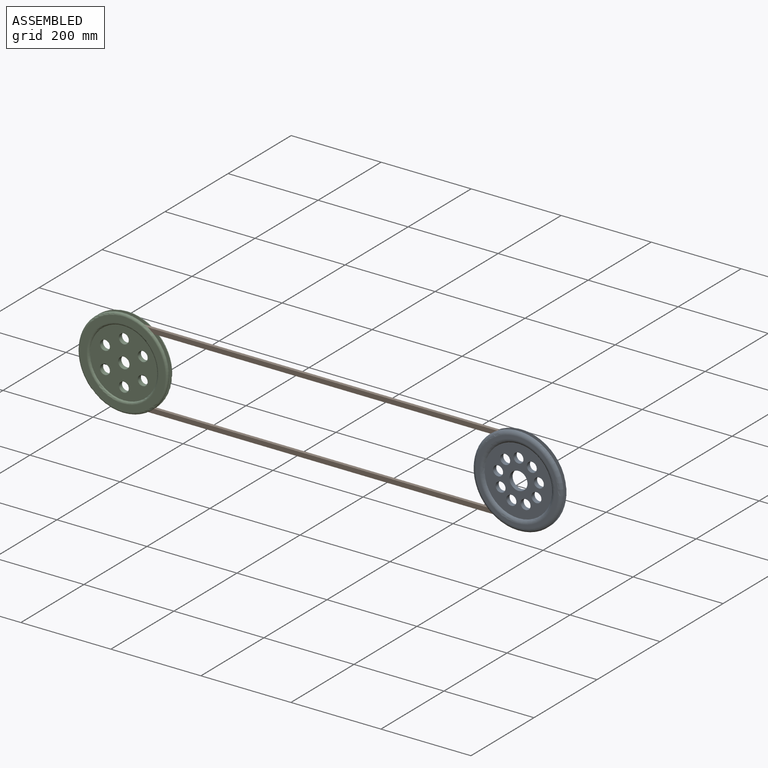
[diagram: assembled view]
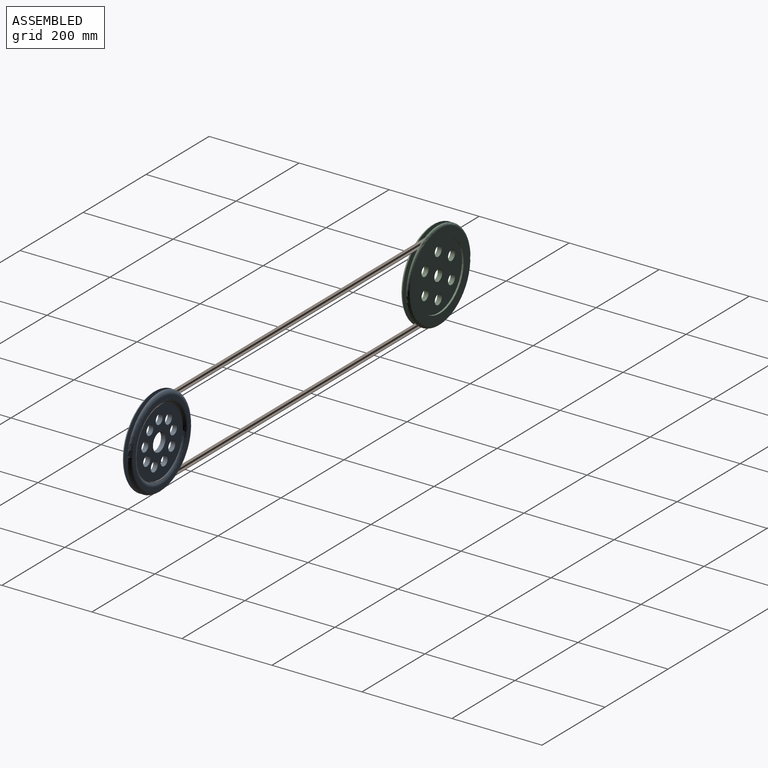
[diagram: assembled view, second angle]
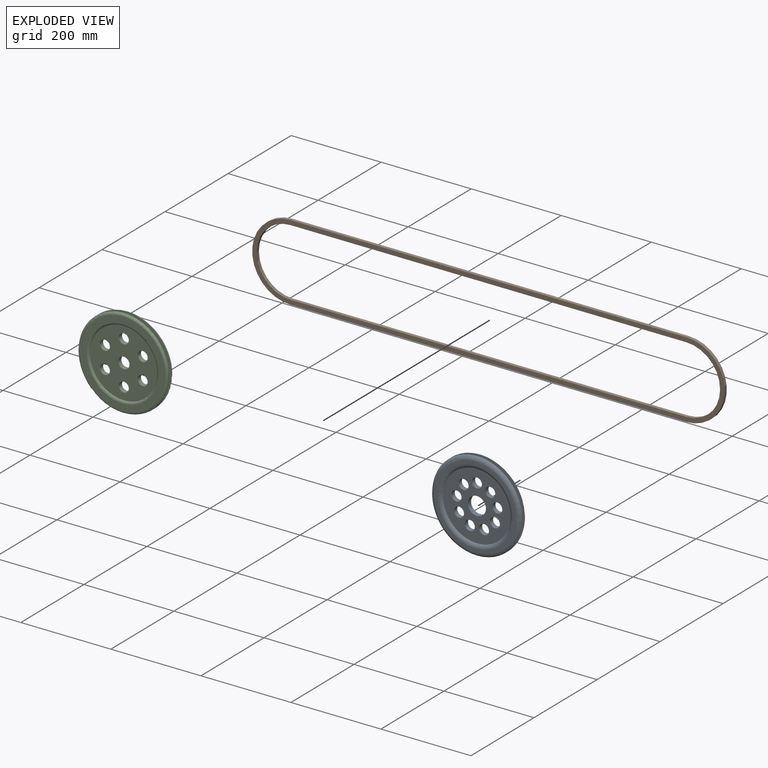
[diagram: exploded view]
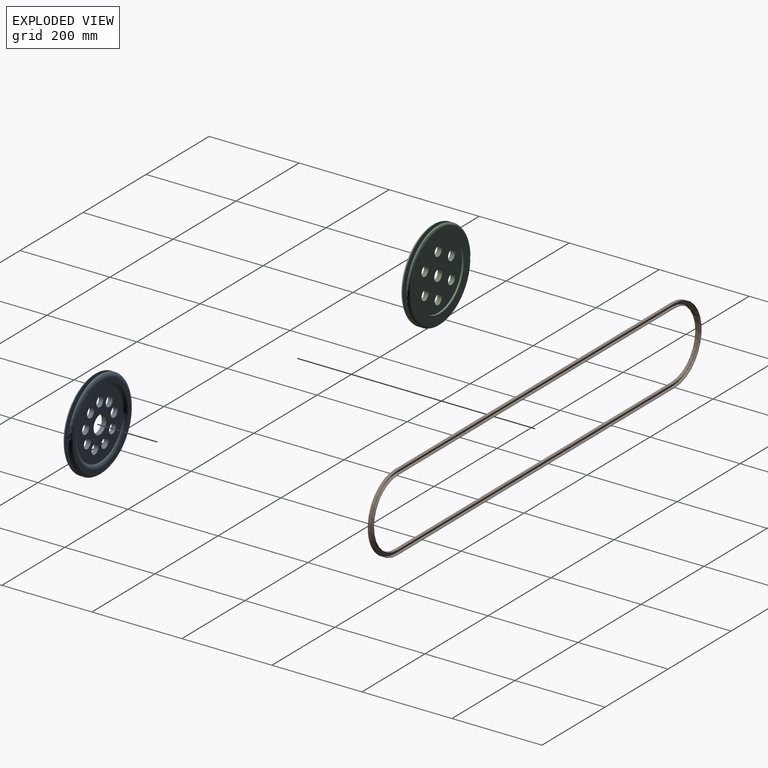
[diagram: exploded view, second angle]
ASSEMBLY  parts=3 mates=2
PART A: 21 faces, bbox 218.3x20x218.3 mm
  f0: cylinder r=75mm len=150mm, axis (0,1,0), area 3769.9mm2, adj f14,f16
  f1: cylinder r=11mm len=22mm, axis (0,1,0), area 691.2mm2, adj f11,f12
  f2: cylinder r=11mm len=22mm, axis (0,1,0), area 691.2mm2, adj f11,f12
  f3: cylinder r=11mm len=22mm, axis (0,1,0), area 691.2mm2, adj f11,f12
  f4: cylinder r=11mm len=22mm, axis (0,1,0), area 691.2mm2, adj f11,f12
  f5: cylinder r=11mm len=22mm, axis (0,1,0), area 691.2mm2, adj f11,f12
  f6: cylinder r=11mm len=22mm, axis (0,1,0), area 691.2mm2, adj f11,f12
  f7: cylinder r=11mm len=22mm, axis (0,1,0), area 691.2mm2, adj f11,f12
  f8: cylinder r=11mm len=22mm, axis (0,1,0), area 691.2mm2, adj f11,f12
  f9: cylinder r=11mm len=22mm, axis (0,1,0), area 691.2mm2, adj f11,f12
  f10: cylinder r=20mm len=40mm, axis (0,1,0), area 1256.6mm2, adj f11,f12
  f11: plane 150x150mm, normal (0,-1,0), area 12993.6mm2, adj f1,f2,f3,f4,f5,f6,f7,f8
  f12: plane 150x150mm, normal (0,1,0), area 12993.6mm2, adj f1,f2,f3,f4,f5,f6,f7,f8
  f13: plane 181.67x181.67mm, normal (0,-1,0), area 3933.1mm2, adj f19,f20
  f14: plane 200x200mm, normal (0,1,0), area 13744.5mm2, adj f0,f20
  f15: plane 181.67x181.67mm, normal (0,1,0), area 3933.1mm2, adj f17,f18
  f16: plane 200x200mm, normal (0,-1,0), area 13744.5mm2, adj f0,f18
  f17: torus R=83.66mm, axis (0,1,0), area 5190.5mm2, adj f12,f15
  f18: torus R=90.83mm, axis (0,-1,0), area 6993.4mm2, adj f15,f16
  f19: torus R=83.66mm, axis (0,-1,0), area 5190.5mm2, adj f11,f13
  f20: torus R=90.83mm, axis (0,1,0), area 6993.4mm2, adj f13,f14
PART B: 20 faces, bbox 1049.6x7x170 mm
  f0: plane 1049.64x170mm, normal (0,1,0), area 2290.2mm2, adj f5,f6,f7,f8,f14,f15,f16,f17
  f1: plane 1031.64x152mm, normal (0,1,0), area 2233.7mm2, adj f2,f3,f4,f9,f11,f12,f13,f18
  f2: cylinder r=75mm len=150mm, axis (0,1,0), area 1649.3mm2, adj f1,f3,f9,f10
  f3: plane 879.64x7mm, normal (0,0,-1), area 6157.5mm2, adj f1,f2,f4,f10
  f4: cylinder r=75mm len=150mm, axis (0,1,0), area 1649.3mm2, adj f1,f3,f9,f10
  f5: plane 879.64x7mm, normal (0,0,1), area 6157.5mm2, adj f0,f6,f8,f10
  f6: cylinder r=85mm len=170mm, axis (0,1,0), area 1869.2mm2, adj f0,f5,f7,f10
  f7: plane 879.64x7mm, normal (0,0,-1), area 6157.5mm2, adj f0,f6,f8,f10
  f8: cylinder r=85mm len=170mm, axis (0,1,0), area 1869.2mm2, adj f0,f5,f7,f10
  f9: plane 879.64x7mm, normal (0,0,1), area 6157.5mm2, adj f1,f2,f4,f10
  f10: plane 1049.64x170mm, normal (0,-1,0), area 22619.3mm2, adj f2,f3,f4,f5,f6,f7,f8,f9
  f11: cylinder r=76mm len=152mm, axis (0,1,0), area 1432.6mm2, adj f1,f12,f18,f19
  f12: plane 879.64x6mm, normal (0,0,1), area 5277.8mm2, adj f1,f11,f13,f19
  f13: cylinder r=76mm len=152mm, axis (0,1,0), area 1432.6mm2, adj f1,f12,f18,f19
  f14: plane 879.64x6mm, normal (0,0,-1), area 5277.8mm2, adj f0,f15,f17,f19
  f15: cylinder r=84mm len=168mm, axis (0,1,0), area 1583.4mm2, adj f0,f14,f16,f19
  f16: plane 879.64x6mm, normal (0,0,1), area 5277.8mm2, adj f0,f15,f17,f19
  f17: cylinder r=84mm len=168mm, axis (0,1,0), area 1583.4mm2, adj f0,f14,f16,f19
  f18: plane 879.64x6mm, normal (0,0,-1), area 5277.8mm2, adj f1,f11,f13,f19
  f19: plane 1047.64x168mm, normal (0,1,0), area 18095.5mm2, adj f11,f12,f13,f14,f15,f16,f17,f18
PART C: 18 faces, bbox 216.5x18x216.5 mm
  f0: cylinder r=75mm len=150mm, axis (0,1,0), area 3769.9mm2, adj f11,f14
  f1: cylinder r=12.5mm len=25mm, axis (0,1,0), area 785.4mm2, adj f8,f9
  f2: cylinder r=11mm len=22mm, axis (0,1,0), area 691.2mm2, adj f8,f9
  f3: cylinder r=11mm len=22mm, axis (0,1,0), area 691.2mm2, adj f8,f9
  f4: cylinder r=11mm len=22mm, axis (0,1,0), area 691.2mm2, adj f8,f9
  f5: cylinder r=11mm len=22mm, axis (0,1,0), area 691.2mm2, adj f8,f9
  f6: cylinder r=11mm len=22mm, axis (0,1,0), area 691.2mm2, adj f8,f9
  f7: cylinder r=11mm len=22mm, axis (0,1,0), area 691.2mm2, adj f8,f9
  f8: plane 150x150mm, normal (0,-1,0), area 14899.8mm2, adj f1,f2,f3,f4,f5,f6,f7,f16
  f9: plane 150x150mm, normal (0,1,0), area 14899.8mm2, adj f1,f2,f3,f4,f5,f6,f7,f12
  f10: plane 190x190mm, normal (0,-1,0), area 8297.4mm2, adj f16,f17
  f11: plane 200x200mm, normal (0,1,0), area 13744.5mm2, adj f0,f17
  f12: cylinder r=75mm len=150mm, axis (0,-1,0), area 1885mm2, adj f9,f13
  f13: plane 190x190mm, normal (0,1,0), area 10681.4mm2, adj f12,f15
  f14: plane 200x200mm, normal (0,-1,0), area 13744.5mm2, adj f0,f15
  f15: torus R=95mm, axis (0,1,0), area 4845.1mm2, adj f13,f14
  f16: torus R=79.9mm, axis (0,-1,0), area 3311.8mm2, adj f8,f10
  f17: torus R=95mm, axis (0,-1,0), area 4845.1mm2, adj f10,f11
PLACE A t=(535.38,19.4,-47.65)mm
PLACE B t=(-344.26,26.9,-47.65)mm
PLACE C t=(-344.26,23.4,-47.65)mm
MATE fastened C.f0 <-> B.f2  axis (0,1,0) through (-344.26,23.4,-47.65)mm
MATE fastened A.f0 <-> B.f4  axis (0,-1,0) through (535.38,23.4,-47.65)mm
